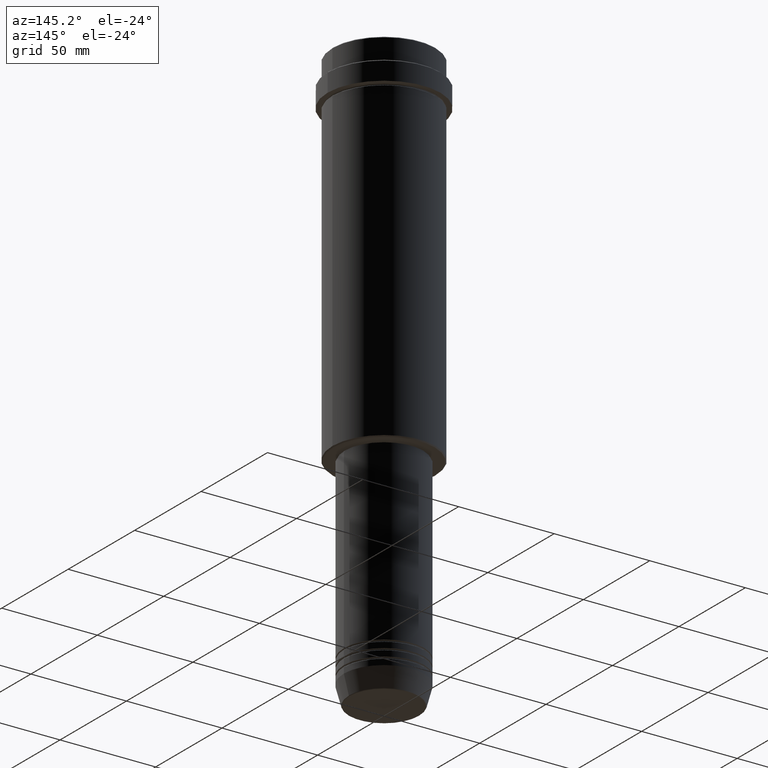
[diagram: clean part render]
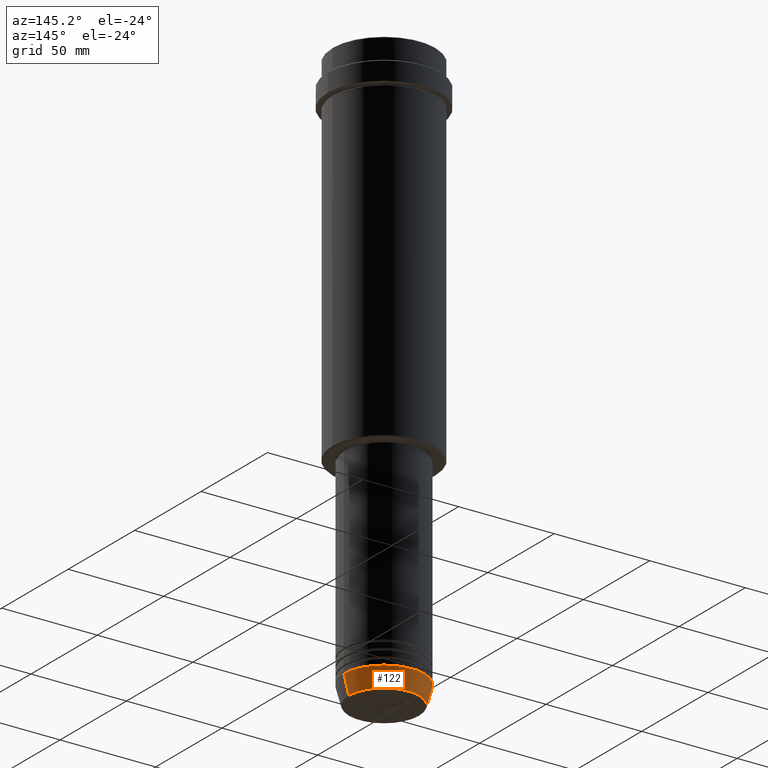
[diagram: same view with one face highlighted and labeled with its STEP entity id]
A machine part, auxiliary view. The second image highlights one B-rep face of the part: STEP entity #122.
In plain terms, the highlighted conical surface has half-angle 15 deg.
Its self-contained STEP definition (entity closure, byte-faithful):
#31 = DIRECTION ( 'NONE',  ( -0.000000000000000000, -0.000000000000000000, 1.000000000000000000 ) ) ;
#39 = CARTESIAN_POINT ( 'NONE',  ( -18.41980749484383750, 2.413767053578267458E-15, -302.6294095225512137 ) ) ;
#52 = ORIENTED_EDGE ( 'NONE', *, *, #844, .T. ) ;
#92 = DIRECTION ( 'NONE',  ( 0.2588190451025211836, 0.000000000000000000, 0.9659258262890680902 ) ) ;
#98 = VECTOR ( 'NONE', #92, 1000.000000000000114 ) ;
#122 = ADVANCED_FACE ( 'NONE', ( #662 ), #718, .T. ) ;
#137 = CARTESIAN_POINT ( 'NONE',  ( 0.000000000000000000, 0.000000000000000000, -293.0000000000000000 ) ) ;
#207 = ORIENTED_EDGE ( 'NONE', *, *, #800, .F. ) ;
#262 = CARTESIAN_POINT ( 'NONE',  ( 0.000000000000000000, 0.000000000000000000, -302.6294095225512137 ) ) ;
#272 = DIRECTION ( 'NONE',  ( 1.000000000000000000, 0.000000000000000000, 0.000000000000000000 ) ) ;
#307 = VERTEX_POINT ( 'NONE', #505 ) ;
#314 = DIRECTION ( 'NONE',  ( 1.000000000000000000, 0.000000000000000000, 0.000000000000000000 ) ) ;
#387 = CIRCLE ( 'NONE', #448, 18.41980749484383750 ) ;
#448 = AXIS2_PLACEMENT_3D ( 'NONE', #262, #1336, #272 ) ;
#456 = DIRECTION ( 'NONE',  ( 1.000000000000000000, 0.000000000000000000, 0.000000000000000000 ) ) ;
#505 = CARTESIAN_POINT ( 'NONE',  ( -21.00000000000000000, 2.571758278209441661E-15, -293.0000000000000000 ) ) ;
#537 = CIRCLE ( 'NONE', #1040, 21.00000000000000000 ) ;
#546 = VERTEX_POINT ( 'NONE', #1246 ) ;
#559 = DIRECTION ( 'NONE',  ( -0.000000000000000000, -0.000000000000000000, 1.000000000000000000 ) ) ;
#601 = CARTESIAN_POINT ( 'NONE',  ( 18.41980749484383750, 0.000000000000000000, -302.6294095225512137 ) ) ;
#623 = AXIS2_PLACEMENT_3D ( 'NONE', #137, #559, #314 ) ;
#625 = VERTEX_POINT ( 'NONE', #39 ) ;
#662 = FACE_OUTER_BOUND ( 'NONE', #1306, .T. ) ;
#667 = DIRECTION ( 'NONE',  ( -0.2588190451025211836, 3.169619151431770488E-17, 0.9659258262890680902 ) ) ;
#718 = CONICAL_SURFACE ( 'NONE', #623, 21.00000000000000000, 0.2617993877991499074 ) ;
#790 = VECTOR ( 'NONE', #667, 1000.000000000000114 ) ;
#800 = EDGE_CURVE ( 'NONE', #938, #546, #1340, .T. ) ;
#813 = ORIENTED_EDGE ( 'NONE', *, *, #1179, .F. ) ;
#817 = CARTESIAN_POINT ( 'NONE',  ( 0.000000000000000000, 0.000000000000000000, -293.0000000000000000 ) ) ;
#830 = ORIENTED_EDGE ( 'NONE', *, *, #1094, .T. ) ;
#844 = EDGE_CURVE ( 'NONE', #625, #307, #992, .T. ) ;
#889 = CARTESIAN_POINT ( 'NONE',  ( -21.00000000000000000, 2.571758278209441661E-15, -293.0000000000000000 ) ) ;
#938 = VERTEX_POINT ( 'NONE', #601 ) ;
#992 = LINE ( 'NONE', #889, #790 ) ;
#1040 = AXIS2_PLACEMENT_3D ( 'NONE', #817, #31, #456 ) ;
#1094 = EDGE_CURVE ( 'NONE', #938, #625, #387, .T. ) ;
#1137 = CARTESIAN_POINT ( 'NONE',  ( 21.00000000000000000, 0.000000000000000000, -293.0000000000000000 ) ) ;
#1179 = EDGE_CURVE ( 'NONE', #546, #307, #537, .T. ) ;
#1246 = CARTESIAN_POINT ( 'NONE',  ( 21.00000000000000000, 0.000000000000000000, -293.0000000000000000 ) ) ;
#1306 = EDGE_LOOP ( 'NONE', ( #830, #52, #813, #207 ) ) ;
#1336 = DIRECTION ( 'NONE',  ( -0.000000000000000000, -0.000000000000000000, 1.000000000000000000 ) ) ;
#1340 = LINE ( 'NONE', #1137, #98 ) ;